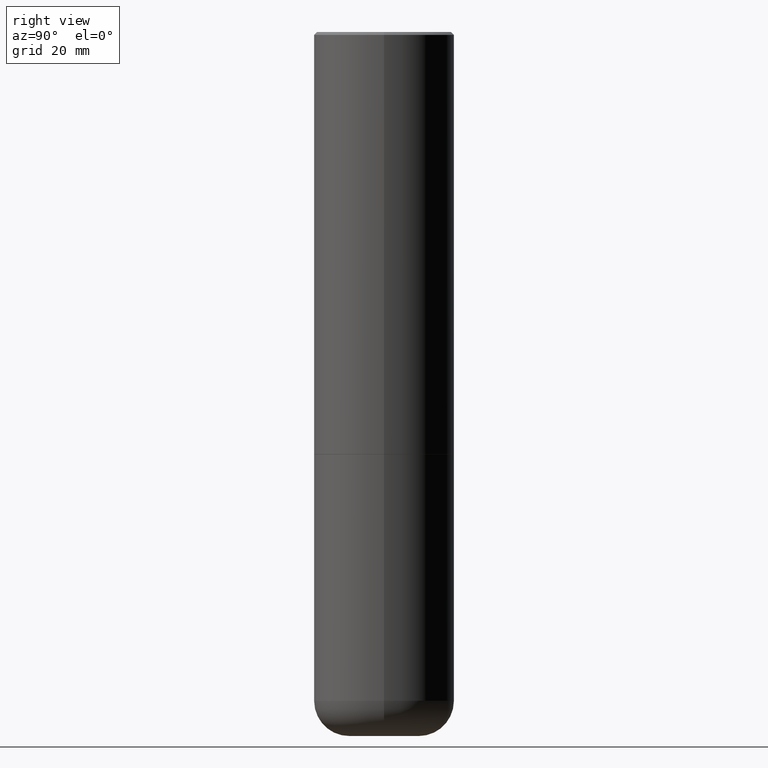
[diagram: clean part render]
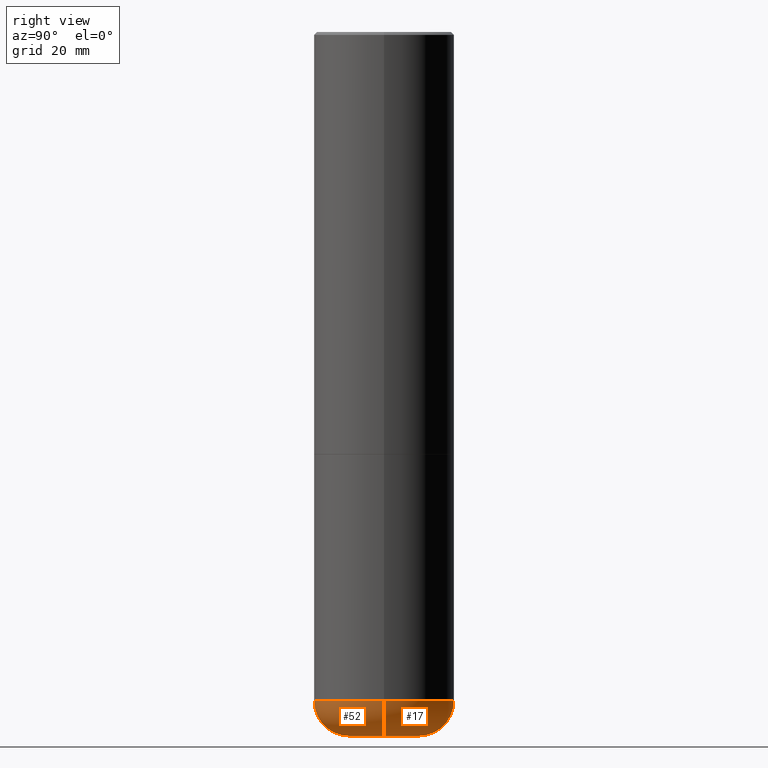
[diagram: same view with one multi-face feature highlighted, each face labeled with its STEP entity id]
A machine part, right view. The highlighted faces form ONE feature: a constant-radius fillet chain: 2 tangent blend faces with common blend radius 6.35 mm. The faces share edges in the B-rep.
Their STEP definitions:
[1] entity #52 (Torus):
#34 = CIRCLE ( 'NONE', #215, 0.2478183661254080850 ) ;
#40 = ORIENTED_EDGE ( 'NONE', *, *, #312, .T. ) ;
#49 = VERTEX_POINT ( 'NONE', #117 ) ;
#52 = ADVANCED_FACE ( 'NONE', ( #272 ), #124, .T. ) ;
#82 = ORIENTED_EDGE ( 'NONE', *, *, #224, .F. ) ;
#89 = CARTESIAN_POINT ( 'NONE',  ( 0.2478183661254080850, -1.918791309571464730E-14, -5.000000000000000000 ) ) ;
#95 = AXIS2_PLACEMENT_3D ( 'NONE', #482, #96, #169 ) ;
#96 = DIRECTION ( 'NONE',  ( -6.982962677686266711E-15, -1.000000000000000000, 3.491481338843145583E-15 ) ) ;
#101 = CARTESIAN_POINT ( 'NONE',  ( -0.5000000000000000000, -9.976793127330550292E-15, -4.750009519233957533 ) ) ;
#117 = CARTESIAN_POINT ( 'NONE',  ( 0.5000000000000000000, -2.007605093457579787E-14, -4.750009519233957533 ) ) ;
#124 = TOROIDAL_SURFACE ( 'NONE', #270, 0.2500000000000002776, 0.2499999999999998612 ) ;
#128 = CARTESIAN_POINT ( 'NONE',  ( 1.161600010836909978E-28, -1.658456959573266451E-14, -4.750009519233957533 ) ) ;
#131 = CIRCLE ( 'NONE', #285, 0.2499999999999998612 ) ;
#156 = CARTESIAN_POINT ( 'NONE',  ( -0.2500000000000002776, -1.480821275633241089E-14, -4.750009519233957533 ) ) ;
#169 = DIRECTION ( 'NONE',  ( 1.000000000000000000, -6.982962677686266711E-15, 0.000000000000000000 ) ) ;
#181 = CIRCLE ( 'NONE', #371, 0.5000000000000000000 ) ;
#183 = ORIENTED_EDGE ( 'NONE', *, *, #404, .T. ) ;
#201 = DIRECTION ( 'NONE',  ( -2.445468806185136597E-29, 3.491481338843145583E-15, 1.000000000000000000 ) ) ;
#213 = DIRECTION ( 'NONE',  ( 1.000000000000000000, -6.982962677686266711E-15, 0.000000000000000000 ) ) ;
#215 = AXIS2_PLACEMENT_3D ( 'NONE', #389, #201, #279 ) ;
#221 = CIRCLE ( 'NONE', #95, 0.2499999999999998612 ) ;
#223 = ORIENTED_EDGE ( 'NONE', *, *, #408, .F. ) ;
#224 = EDGE_CURVE ( 'NONE', #390, #455, #131, .T. ) ;
#266 = DIRECTION ( 'NONE',  ( 7.105427357601001859E-15, 1.000000000000000000, -3.491481338843145583E-15 ) ) ;
#270 = AXIS2_PLACEMENT_3D ( 'NONE', #128, #288, #283 ) ;
#272 = FACE_OUTER_BOUND ( 'NONE', #357, .T. ) ;
#279 = DIRECTION ( 'NONE',  ( 1.000000000000000000, -6.982962677686273021E-15, 0.000000000000000000 ) ) ;
#283 = DIRECTION ( 'NONE',  ( 1.000000000000000000, -6.982962677686265133E-15, 4.883557194083112340E-29 ) ) ;
#285 = AXIS2_PLACEMENT_3D ( 'NONE', #156, #266, #427 ) ;
#288 = DIRECTION ( 'NONE',  ( -2.445468806185136597E-29, 3.491481338843145583E-15, 1.000000000000000000 ) ) ;
#289 = CARTESIAN_POINT ( 'NONE',  ( -0.2478183661254081127, -1.436420360638221795E-14, -5.000000000000000000 ) ) ;
#312 = EDGE_CURVE ( 'NONE', #390, #353, #34, .T. ) ;
#353 = VERTEX_POINT ( 'NONE', #89 ) ;
#357 = EDGE_LOOP ( 'NONE', ( #82, #40, #183, #223 ) ) ;
#371 = AXIS2_PLACEMENT_3D ( 'NONE', #445, #405, #213 ) ;
#389 = CARTESIAN_POINT ( 'NONE',  ( 1.222734403092568523E-28, -1.745740669421572989E-14, -5.000000000000000000 ) ) ;
#390 = VERTEX_POINT ( 'NONE', #289 ) ;
#404 = EDGE_CURVE ( 'NONE', #353, #49, #221, .T. ) ;
#405 = DIRECTION ( 'NONE',  ( -2.445468806185136597E-29, 3.491481338843145583E-15, 1.000000000000000000 ) ) ;
#408 = EDGE_CURVE ( 'NONE', #455, #49, #181, .T. ) ;
#427 = DIRECTION ( 'NONE',  ( -1.000000000000000000, 7.105427357601000281E-15, 0.000000000000000000 ) ) ;
#445 = CARTESIAN_POINT ( 'NONE',  ( 1.161600010836909978E-28, -1.658456959573266451E-14, -4.750009519233957533 ) ) ;
#455 = VERTEX_POINT ( 'NONE', #101 ) ;
#482 = CARTESIAN_POINT ( 'NONE',  ( 0.2500000000000002776, -1.833031026515423119E-14, -4.750009519233957533 ) ) ;
[2] entity #17 (Torus):
#17 = ADVANCED_FACE ( 'NONE', ( #189 ), #479, .T. ) ;
#22 = AXIS2_PLACEMENT_3D ( 'NONE', #435, #212, #282 ) ;
#24 = AXIS2_PLACEMENT_3D ( 'NONE', #327, #98, #253 ) ;
#49 = VERTEX_POINT ( 'NONE', #117 ) ;
#77 = ORIENTED_EDGE ( 'NONE', *, *, #449, .F. ) ;
#87 = ORIENTED_EDGE ( 'NONE', *, *, #112, .T. ) ;
#89 = CARTESIAN_POINT ( 'NONE',  ( 0.2478183661254080850, -1.918791309571464730E-14, -5.000000000000000000 ) ) ;
#95 = AXIS2_PLACEMENT_3D ( 'NONE', #482, #96, #169 ) ;
#96 = DIRECTION ( 'NONE',  ( -6.982962677686266711E-15, -1.000000000000000000, 3.491481338843145583E-15 ) ) ;
#98 = DIRECTION ( 'NONE',  ( -2.445468806185136597E-29, 3.491481338843145583E-15, 1.000000000000000000 ) ) ;
#101 = CARTESIAN_POINT ( 'NONE',  ( -0.5000000000000000000, -9.976793127330550292E-15, -4.750009519233957533 ) ) ;
#112 = EDGE_CURVE ( 'NONE', #353, #390, #164, .T. ) ;
#117 = CARTESIAN_POINT ( 'NONE',  ( 0.5000000000000000000, -2.007605093457579787E-14, -4.750009519233957533 ) ) ;
#120 = EDGE_LOOP ( 'NONE', ( #87, #302, #77, #416 ) ) ;
#131 = CIRCLE ( 'NONE', #285, 0.2499999999999998612 ) ;
#150 = CARTESIAN_POINT ( 'NONE',  ( 1.161600010836909978E-28, -1.658456959573266451E-14, -4.750009519233957533 ) ) ;
#156 = CARTESIAN_POINT ( 'NONE',  ( -0.2500000000000002776, -1.480821275633241089E-14, -4.750009519233957533 ) ) ;
#164 = CIRCLE ( 'NONE', #22, 0.2478183661254080850 ) ;
#169 = DIRECTION ( 'NONE',  ( 1.000000000000000000, -6.982962677686266711E-15, 0.000000000000000000 ) ) ;
#189 = FACE_OUTER_BOUND ( 'NONE', #120, .T. ) ;
#212 = DIRECTION ( 'NONE',  ( -2.445468806185136597E-29, 3.491481338843145583E-15, 1.000000000000000000 ) ) ;
#221 = CIRCLE ( 'NONE', #95, 0.2499999999999998612 ) ;
#224 = EDGE_CURVE ( 'NONE', #390, #455, #131, .T. ) ;
#253 = DIRECTION ( 'NONE',  ( 1.000000000000000000, -6.982962677686266711E-15, 0.000000000000000000 ) ) ;
#266 = DIRECTION ( 'NONE',  ( 7.105427357601001859E-15, 1.000000000000000000, -3.491481338843145583E-15 ) ) ;
#282 = DIRECTION ( 'NONE',  ( 1.000000000000000000, -6.982962677686273021E-15, 0.000000000000000000 ) ) ;
#285 = AXIS2_PLACEMENT_3D ( 'NONE', #156, #266, #427 ) ;
#289 = CARTESIAN_POINT ( 'NONE',  ( -0.2478183661254081127, -1.436420360638221795E-14, -5.000000000000000000 ) ) ;
#302 = ORIENTED_EDGE ( 'NONE', *, *, #224, .T. ) ;
#320 = AXIS2_PLACEMENT_3D ( 'NONE', #150, #385, #348 ) ;
#327 = CARTESIAN_POINT ( 'NONE',  ( 1.161600010836909978E-28, -1.658456959573266451E-14, -4.750009519233957533 ) ) ;
#331 = CIRCLE ( 'NONE', #24, 0.5000000000000000000 ) ;
#348 = DIRECTION ( 'NONE',  ( 1.000000000000000000, -6.982962677686265133E-15, 4.883557194083112340E-29 ) ) ;
#353 = VERTEX_POINT ( 'NONE', #89 ) ;
#385 = DIRECTION ( 'NONE',  ( -2.445468806185136597E-29, 3.491481338843145583E-15, 1.000000000000000000 ) ) ;
#390 = VERTEX_POINT ( 'NONE', #289 ) ;
#404 = EDGE_CURVE ( 'NONE', #353, #49, #221, .T. ) ;
#416 = ORIENTED_EDGE ( 'NONE', *, *, #404, .F. ) ;
#427 = DIRECTION ( 'NONE',  ( -1.000000000000000000, 7.105427357601000281E-15, 0.000000000000000000 ) ) ;
#435 = CARTESIAN_POINT ( 'NONE',  ( 1.222734403092568523E-28, -1.745740669421572989E-14, -5.000000000000000000 ) ) ;
#449 = EDGE_CURVE ( 'NONE', #49, #455, #331, .T. ) ;
#455 = VERTEX_POINT ( 'NONE', #101 ) ;
#479 = TOROIDAL_SURFACE ( 'NONE', #320, 0.2500000000000002776, 0.2499999999999998612 ) ;
#482 = CARTESIAN_POINT ( 'NONE',  ( 0.2500000000000002776, -1.833031026515423119E-14, -4.750009519233957533 ) ) ;